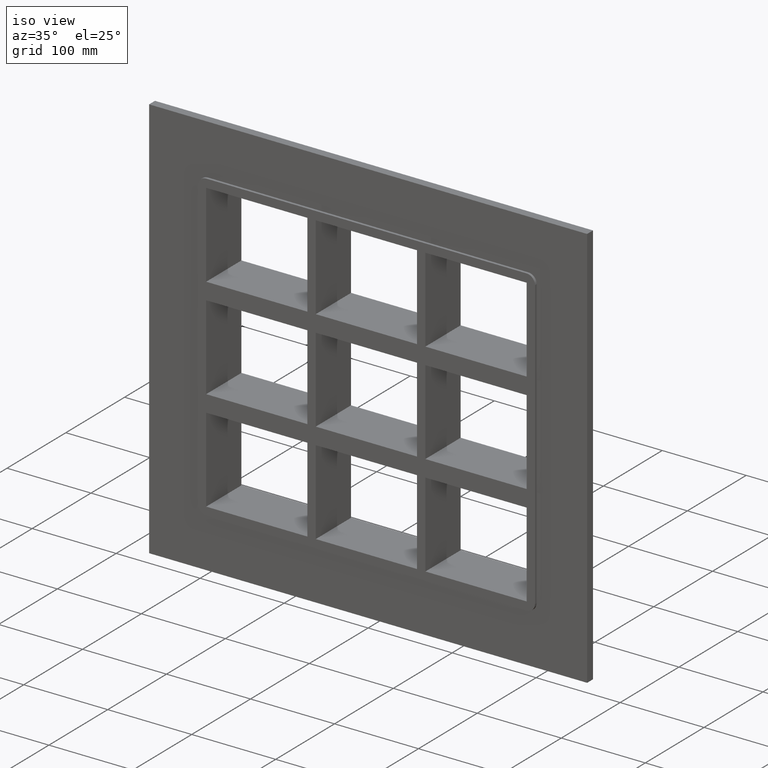
[diagram: clean part render]
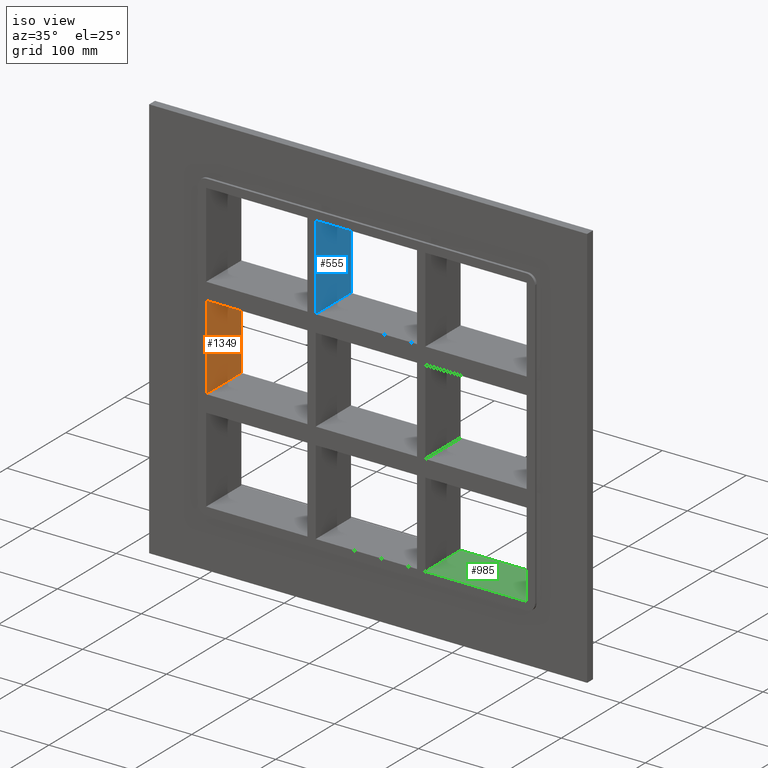
[diagram: same view with three faces highlighted in distinct colors, each labeled with its STEP entity id]
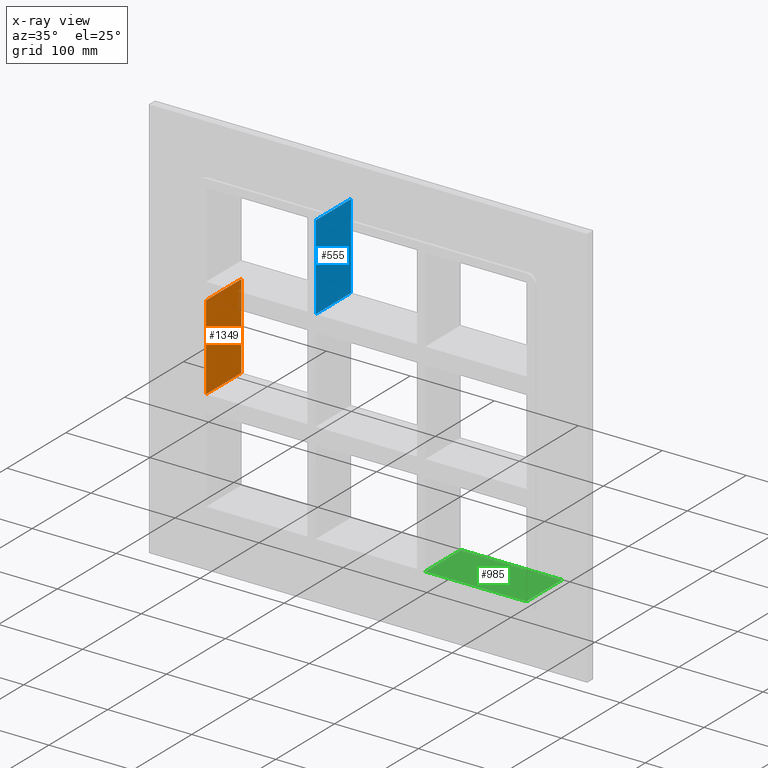
[diagram: x-ray of the same camera — body ghosted, the three highlighted faces saturated]
A machine part, iso view with three faces highlighted in distinct colors.
The next image is the same camera in x-ray (body ghosted, the three faces saturated) — at least one of them is partly hidden behind the body in this view.
Their STEP definitions:

[orange] entity #1349 — the highlighted planar face has unit normal (-1, 0, 0).
#83=CARTESIAN_POINT('',(-190.74999999999972,-3.0,50.499999999990521));
#84=VERTEX_POINT('',#83);
#91=CARTESIAN_POINT('',(-190.74999999999972,57.0,50.499999999990521));
#92=VERTEX_POINT('',#91);
#93=CARTESIAN_POINT('',(-190.75000000000003,57.000000000000007,50.499999999990507));
#94=DIRECTION('',(0.0,-1.0,0.0));
#95=VECTOR('',#94,60.000000000000007);
#96=LINE('',#93,#95);
#97=EDGE_CURVE('',#92,#84,#96,.T.);
#631=CARTESIAN_POINT('',(-190.74999999999972,57.0,-50.500000000000114));
#632=VERTEX_POINT('',#631);
#633=CARTESIAN_POINT('',(-190.75000000000003,57.0,50.499999999990507));
#634=DIRECTION('',(0.0,0.0,-1.0));
#635=VECTOR('',#634,100.99999999999062);
#636=LINE('',#633,#635);
#637=EDGE_CURVE('',#92,#632,#636,.T.);
#1114=CARTESIAN_POINT('',(-190.74999999999972,-3.0,-50.500000000000114));
#1115=VERTEX_POINT('',#1114);
#1122=CARTESIAN_POINT('',(-190.75000000000003,-3.0,-50.500000000000121));
#1123=DIRECTION('',(0.0,0.0,1.0));
#1124=VECTOR('',#1123,100.99999999999062);
#1125=LINE('',#1122,#1124);
#1126=EDGE_CURVE('',#1115,#84,#1125,.T.);
#1328=CARTESIAN_POINT('',(-190.75000000000003,-3.0,-50.500000000000114));
#1329=DIRECTION('',(0.0,1.0,0.0));
#1330=VECTOR('',#1329,60.000000000000007);
#1331=LINE('',#1328,#1330);
#1332=EDGE_CURVE('',#1115,#632,#1331,.T.);
#1338=CARTESIAN_POINT('',(-190.75000000000003,0.0,-171.5));
#1339=DIRECTION('',(-1.0,0.0,0.0));
#1340=DIRECTION('',(0.0,0.0,1.0));
#1341=AXIS2_PLACEMENT_3D('',#1338,#1339,#1340);
#1342=PLANE('',#1341);
#1343=ORIENTED_EDGE('',*,*,#97,.T.);
#1344=ORIENTED_EDGE('',*,*,#1126,.F.);
#1345=ORIENTED_EDGE('',*,*,#1332,.T.);
#1346=ORIENTED_EDGE('',*,*,#637,.F.);
#1347=EDGE_LOOP('',(#1343,#1344,#1345,#1346));
#1348=FACE_OUTER_BOUND('',#1347,.T.);
#1349=ADVANCED_FACE('',(#1348),#1342,.F.);

[blue] entity #555 — the highlighted planar face has unit normal (1, 0, 0).
#283=CARTESIAN_POINT('',(-60.249999999996362,57.0,70.499999999999901));
#284=VERTEX_POINT('',#283);
#291=CARTESIAN_POINT('',(-60.249999999996362,-3.0,70.499999999999901));
#292=VERTEX_POINT('',#291);
#293=CARTESIAN_POINT('',(-60.249999999996362,-3.0,70.499999999999901));
#294=DIRECTION('',(0.0,1.0,0.0));
#295=VECTOR('',#294,60.0);
#296=LINE('',#293,#295);
#297=EDGE_CURVE('',#292,#284,#296,.T.);
#525=CARTESIAN_POINT('',(-60.249999999996362,-3.0,171.5));
#526=DIRECTION('',(1.0,0.0,0.0));
#527=DIRECTION('',(0.0,0.0,-1.0));
#528=AXIS2_PLACEMENT_3D('',#525,#526,#527);
#529=PLANE('',#528);
#530=ORIENTED_EDGE('',*,*,#297,.T.);
#531=CARTESIAN_POINT('',(-60.249999999996362,57.0,171.5));
#532=VERTEX_POINT('',#531);
#533=CARTESIAN_POINT('',(-60.249999999996362,57.0,171.5));
#534=DIRECTION('',(0.0,0.0,-1.0));
#535=VECTOR('',#534,101.00000000000009);
#536=LINE('',#533,#535);
#537=EDGE_CURVE('',#532,#284,#536,.T.);
#538=ORIENTED_EDGE('',*,*,#537,.F.);
#539=CARTESIAN_POINT('',(-60.249999999996362,-3.0,171.5));
#540=VERTEX_POINT('',#539);
#541=CARTESIAN_POINT('',(-60.249999999996362,-3.0,171.50000000000003));
#542=DIRECTION('',(0.0,1.0,0.0));
#543=VECTOR('',#542,60.000000000000007);
#544=LINE('',#541,#543);
#545=EDGE_CURVE('',#540,#532,#544,.T.);
#546=ORIENTED_EDGE('',*,*,#545,.F.);
#547=CARTESIAN_POINT('',(-60.249999999996362,-3.0,171.5));
#548=DIRECTION('',(0.0,0.0,-1.0));
#549=VECTOR('',#548,101.00000000000009);
#550=LINE('',#547,#549);
#551=EDGE_CURVE('',#540,#292,#550,.T.);
#552=ORIENTED_EDGE('',*,*,#551,.T.);
#553=EDGE_LOOP('',(#530,#538,#546,#552));
#554=FACE_OUTER_BOUND('',#553,.T.);
#555=ADVANCED_FACE('',(#554),#529,.T.);

[green] entity #985 — the highlighted planar face has unit normal (0, 0, -1).
#793=CARTESIAN_POINT('',(70.250000000003638,57.0,-171.49999999998408));
#794=VERTEX_POINT('',#793);
#795=CARTESIAN_POINT('',(190.75000000000003,57.0,-171.5));
#796=VERTEX_POINT('',#795);
#797=CARTESIAN_POINT('',(70.250000000003638,57.0,-171.5));
#798=DIRECTION('',(1.0,0.0,0.0));
#799=VECTOR('',#798,120.49999999999639);
#800=LINE('',#797,#799);
#801=EDGE_CURVE('',#794,#796,#800,.T.);
#920=CARTESIAN_POINT('',(70.250000000003638,-3.0,-171.49999999998403));
#921=VERTEX_POINT('',#920);
#928=CARTESIAN_POINT('',(70.250000000003638,57.000000000000007,-171.5));
#929=DIRECTION('',(0.0,-1.0,0.0));
#930=VECTOR('',#929,60.000000000000007);
#931=LINE('',#928,#930);
#932=EDGE_CURVE('',#794,#921,#931,.T.);
#962=CARTESIAN_POINT('',(190.75000000000003,0.0,-171.5));
#963=DIRECTION('',(0.0,0.0,-1.0));
#964=DIRECTION('',(-1.0,0.0,0.0));
#965=AXIS2_PLACEMENT_3D('',#962,#963,#964);
#966=PLANE('',#965);
#967=ORIENTED_EDGE('',*,*,#932,.T.);
#968=CARTESIAN_POINT('',(190.75000000000003,-3.0,-171.5));
#969=VERTEX_POINT('',#968);
#970=CARTESIAN_POINT('',(190.75000000000003,-3.0,-171.5));
#971=DIRECTION('',(-1.0,0.0,0.0));
#972=VECTOR('',#971,120.49999999999639);
#973=LINE('',#970,#972);
#974=EDGE_CURVE('',#969,#921,#973,.T.);
#975=ORIENTED_EDGE('',*,*,#974,.F.);
#976=CARTESIAN_POINT('',(190.75000000000003,57.0,-171.5));
#977=DIRECTION('',(0.0,-1.0,0.0));
#978=VECTOR('',#977,60.0);
#979=LINE('',#976,#978);
#980=EDGE_CURVE('',#796,#969,#979,.T.);
#981=ORIENTED_EDGE('',*,*,#980,.F.);
#982=ORIENTED_EDGE('',*,*,#801,.F.);
#983=EDGE_LOOP('',(#967,#975,#981,#982));
#984=FACE_OUTER_BOUND('',#983,.T.);
#985=ADVANCED_FACE('',(#984),#966,.F.);